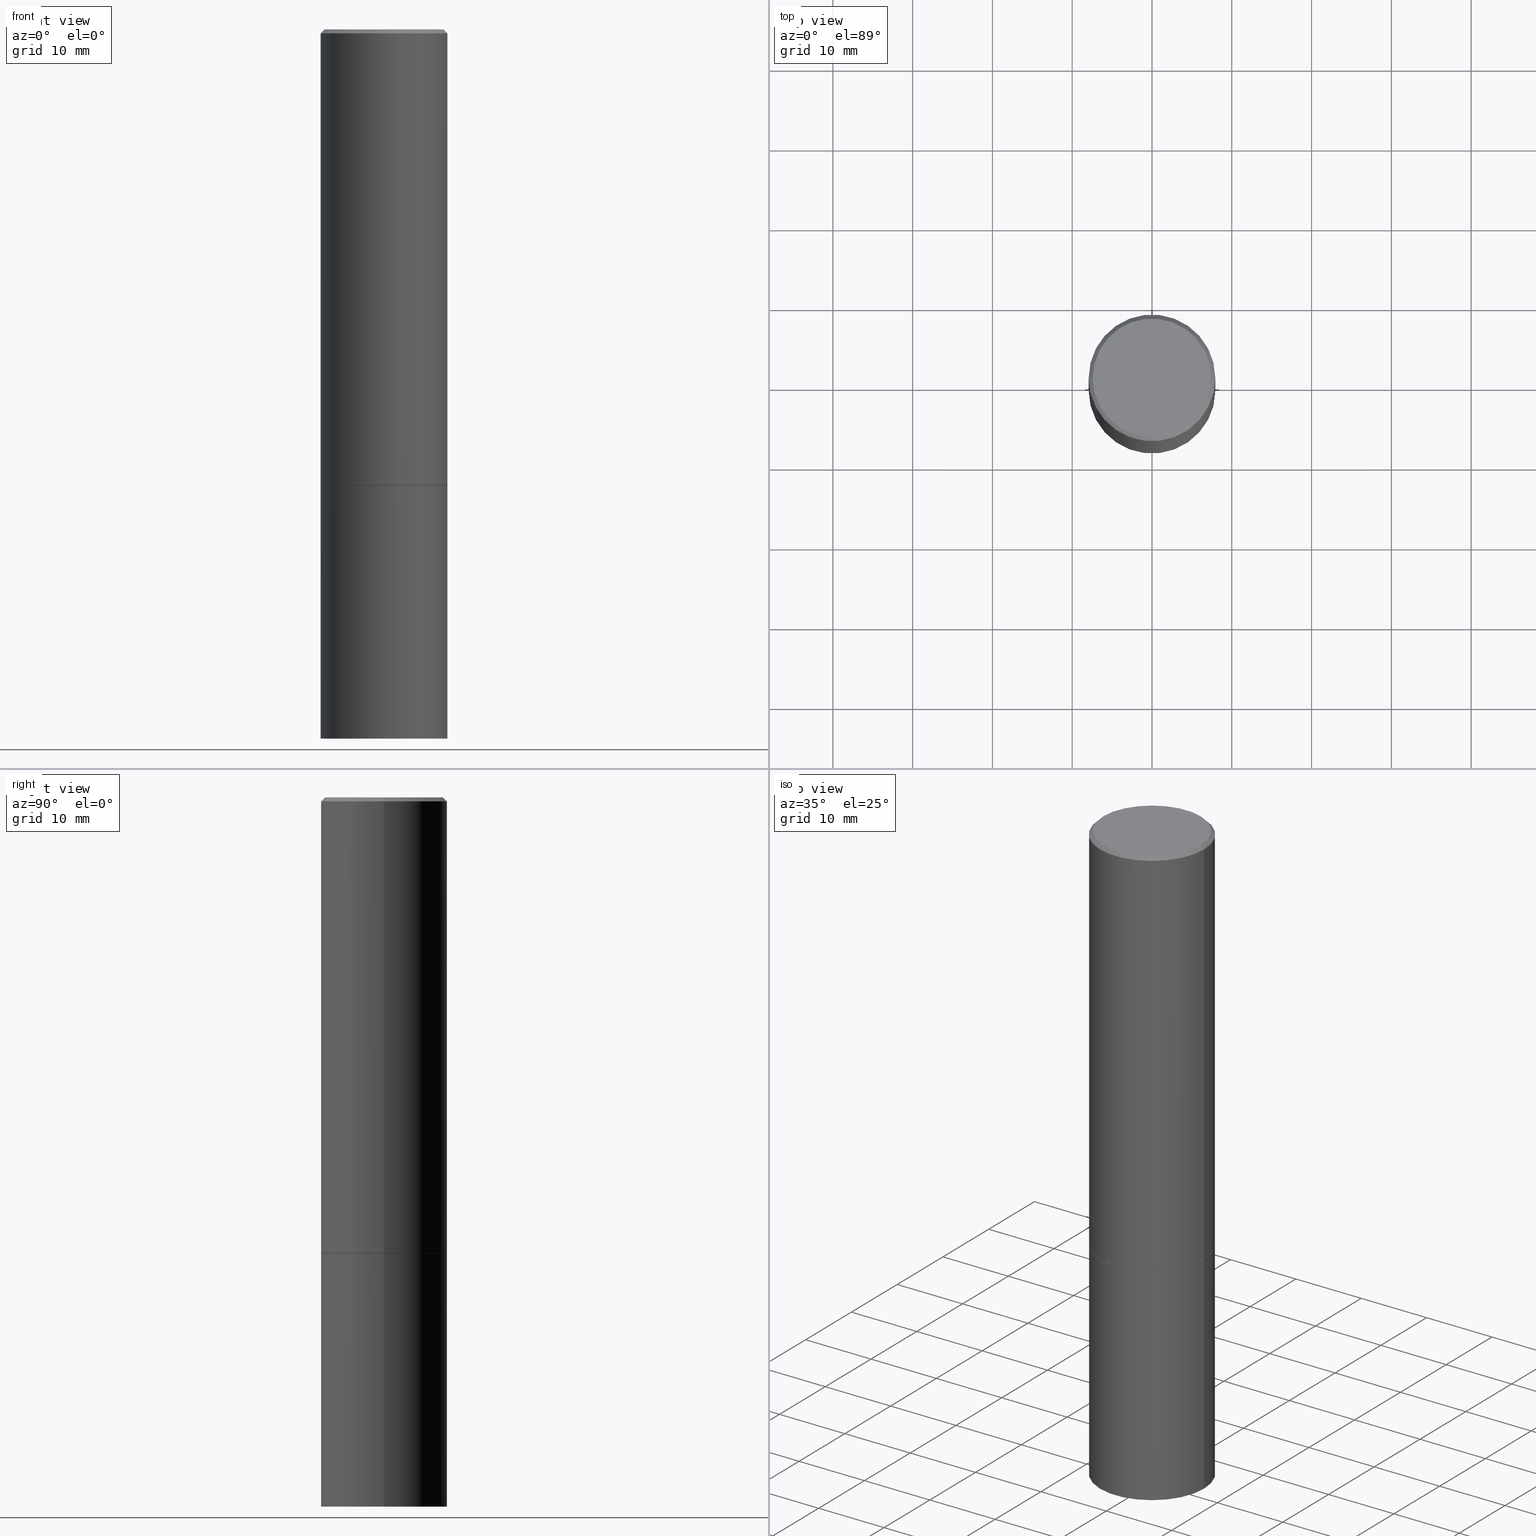
[diagram: canonical four-view strip — front | top / right | iso, engineering-drawing reading convention]
A machine part, canonical four-view strip (front | top / right | iso — engineering-drawing reading convention). The complete STEP part file that produces these views, byte-faithful:
ISO-10303-21;
HEADER;
FILE_DESCRIPTION (( 'STEP AP203' ),
    '1' );
FILE_NAME ('30381.STEP',
    '2023-03-21T20:26:38',
    ( '' ),
    ( '' ),
    'SwSTEP 2.0',
    'SolidWorks 2022',
    '' );
FILE_SCHEMA (( 'CONFIG_CONTROL_DESIGN' ));
ENDSEC;

DATA;
#1 = APPROVAL ( #134, 'UNSPECIFIED' ) ;
#2 = EDGE_CURVE ( 'NONE', #308, #19, #156, .T. ) ;
#3 = ORIENTED_EDGE ( 'NONE', *, *, #389, .F. ) ;
#4 = CARTESIAN_POINT ( 'NONE',  ( 1.047973897810563057E-27, -1.496228984211908293E-13, -42.85370130913153019 ) ) ;
#5 = CC_DESIGN_PERSON_AND_ORGANIZATION_ASSIGNMENT ( #279, #287, ( #250 ) ) ;
#6 = FACE_OUTER_BOUND ( 'NONE', #251, .T. ) ;
#7 = SECURITY_CLASSIFICATION_LEVEL ( 'unclassified' ) ;
#8 = MANIFOLD_SOLID_BREP ( 'Body-Move/Copy2[2]', #360 ) ;
#9 = CARTESIAN_POINT ( 'NONE',  ( 5.502304813916556222E-29, -7.855833012397075293E-15, -2.249999999999999556 ) ) ;
#10 = AXIS2_PLACEMENT_3D ( 'NONE', #362, #41, #334 ) ;
#11 = VECTOR ( 'NONE', #232, 39.37007874015748143 ) ;
#12 = CARTESIAN_POINT ( 'NONE',  ( 5.502304813916556222E-29, -7.855833012397076871E-15, -2.249999999999999556 ) ) ;
#13 = CARTESIAN_POINT ( 'NONE',  ( -0.3124999999999998890, 2.220446049250312292E-15, -1.537167215704657391E-29 ) ) ;
#14 = CC_DESIGN_DATE_AND_TIME_ASSIGNMENT ( #252, #370, ( #143 ) ) ;
#15 = FACE_OUTER_BOUND ( 'NONE', #327, .T. ) ;
#16 = AXIS2_PLACEMENT_3D ( 'NONE', #283, #130, #305 ) ;
#17 = APPROVAL_PERSON_ORGANIZATION ( #65, #1, #47 ) ;
#18 = CARTESIAN_POINT ( 'NONE',  ( 0.000000000000000000, 0.000000000000000000, 0.000000000000000000 ) ) ;
#19 = VERTEX_POINT ( 'NONE', #365 ) ;
#20 = CARTESIAN_POINT ( 'NONE',  ( 4.890937612370289799E-31, -6.982962677686315028E-17, -0.02000000000000006981 ) ) ;
#21 = DIRECTION ( 'NONE',  ( 2.438088387897960049E-29, -3.491481338843145188E-15, -1.000000000000000000 ) ) ;
#22 = ORIENTED_EDGE ( 'NONE', *, *, #226, .F. ) ;
#23 = DIRECTION ( 'NONE',  ( -2.445468806185136597E-29, 3.491481338843145583E-15, 1.000000000000000000 ) ) ;
#24 = PERSON ( 'UNSPECIFIED', 'UNSPECIFIED', 'UNSPECIFIED', ('UNSPECIFIED'), ('UNSPECIFIED'), ('UNSPECIFIED') ) ;
#25 = ORIENTED_EDGE ( 'NONE', *, *, #170, .F. ) ;
#26 = AXIS2_PLACEMENT_3D ( 'NONE', #296, #313, #108 ) ;
#27 =( LENGTH_UNIT ( ) NAMED_UNIT ( * ) SI_UNIT ( $, .METRE. ) );
#28 = ADVANCED_FACE ( 'NONE', ( #6 ), #214, .F. ) ;
#29 = PLANE ( 'NONE',  #178 ) ;
#30 = ORIENTED_EDGE ( 'NONE', *, *, #293, .F. ) ;
#31 = AXIS2_PLACEMENT_3D ( 'NONE', #162, #197, #259 ) ;
#32 = ORGANIZATION ( 'UNSPECIFIED', 'UNSPECIFIED', '' ) ;
#33 = EDGE_CURVE ( 'NONE', #196, #201, #96, .T. ) ;
#34 = CARTESIAN_POINT ( 'NONE',  ( 5.499859345110370619E-29, -7.852341531058232286E-15, -2.248999999999999222 ) ) ;
#35 = AXIS2_PLACEMENT_3D ( 'NONE', #9, #248, #212 ) ;
#36 = DIRECTION ( 'NONE',  ( 0.7071067811864267805, -2.468850131080992517E-15, 0.7071067811866682540 ) ) ;
#37 = LOCAL_TIME ( 16, 26, 38.00000000000000000, #384 ) ;
#38 = LINE ( 'NONE', #123, #104 ) ;
#39 = DIRECTION ( 'NONE',  ( -2.445468806185136597E-29, 3.491481338843145583E-15, 1.000000000000000000 ) ) ;
#40 = PERSON_AND_ORGANIZATION ( #24, #32 ) ;
#41 = DIRECTION ( 'NONE',  ( -2.445468806185136597E-29, 3.491481338843145583E-15, 1.000000000000000000 ) ) ;
#42 = CC_DESIGN_APPROVAL ( #1, ( #250 ) ) ;
#43 = CC_DESIGN_PERSON_AND_ORGANIZATION_ASSIGNMENT ( #40, #338, ( #250 ) ) ;
#44 = CARTESIAN_POINT ( 'NONE',  ( 0.3124999999999998890, -2.182175836776957558E-15, 1.523805242436229235E-29 ) ) ;
#45 = PERSON_AND_ORGANIZATION_ROLE ( 'classification_officer' ) ;
#46 = DIRECTION ( 'NONE',  ( 1.000000000000000000, -6.982962677686269077E-15, 0.000000000000000000 ) ) ;
#47 = APPROVAL_ROLE ( '' ) ;
#48 = DIRECTION ( 'NONE',  ( -1.000000000000000000, 6.982962677686265133E-15, 0.000000000000000000 ) ) ;
#49 = AXIS2_PLACEMENT_3D ( 'NONE', #260, #297, #300 ) ;
#50 = VECTOR ( 'NONE', #302, 39.37007874015748143 ) ;
#51 = CARTESIAN_POINT ( 'NONE',  ( 4.890937612370289799E-31, -6.982962677686315028E-17, -0.02000000000000006981 ) ) ;
#52 = FACE_OUTER_BOUND ( 'NONE', #355, .T. ) ;
#53 = ORIENTED_EDGE ( 'NONE', *, *, #170, .T. ) ;
#54 = LINE ( 'NONE', #199, #203 ) ;
#55 = DIRECTION ( 'NONE',  ( -1.000000000000000000, 6.982962677686265922E-15, -4.876176775795935793E-29 ) ) ;
#56 = ORIENTED_EDGE ( 'NONE', *, *, #328, .T. ) ;
#57 = EDGE_CURVE ( 'NONE', #126, #388, #228, .T. ) ;
#58 = CARTESIAN_POINT ( 'NONE',  ( -0.2924999999999997602, 2.077431396611662611E-15, 4.268512490086005323E-18 ) ) ;
#59 = EDGE_LOOP ( 'NONE', ( #301, #53 ) ) ;
#60 =( CONVERSION_BASED_UNIT ( 'INCH', #329 ) LENGTH_UNIT ( ) NAMED_UNIT ( #116 ) );
#61 = ORIENTED_EDGE ( 'NONE', *, *, #310, .T. ) ;
#62 = DIRECTION ( 'NONE',  ( -2.445468806185136597E-29, 3.491481338843145583E-15, 1.000000000000000000 ) ) ;
#63 = CC_DESIGN_SECURITY_CLASSIFICATION ( #143, ( #250 ) ) ;
#64 = CARTESIAN_POINT ( 'NONE',  ( -1.043851414335219820E-46, 1.490343170380447200E-32, 4.268512490100411279E-18 ) ) ;
#65 = PERSON_AND_ORGANIZATION ( #24, #32 ) ;
#66 = CARTESIAN_POINT ( 'NONE',  ( 5.502304813916556222E-29, -7.855833012397076871E-15, -2.249999999999999556 ) ) ;
#67 = DIRECTION ( 'NONE',  ( -2.445468806185136877E-29, 3.491481338843145188E-15, 1.000000000000000000 ) ) ;
#68 = AXIS2_PLACEMENT_3D ( 'NONE', #81, #325, #171 ) ;
#69 = EDGE_CURVE ( 'NONE', #386, #176, #318, .T. ) ;
#70 = LINE ( 'NONE', #256, #97 ) ;
#71 = DATE_AND_TIME ( #343, #189 ) ;
#72 = CARTESIAN_POINT ( 'NONE',  ( 5.502304813916556222E-29, -7.855833012397076871E-15, -2.249999999999999556 ) ) ;
#73 = CC_DESIGN_DATE_AND_TIME_ASSIGNMENT ( #255, #99, ( #141 ) ) ;
#74 = LINE ( 'NONE', #13, #304 ) ;
#75 = CARTESIAN_POINT ( 'NONE',  ( 0.3125000000000000000, -2.182175836776958347E-15, 1.523805242436230075E-29 ) ) ;
#76 = AXIS2_PLACEMENT_3D ( 'NONE', #51, #165, #48 ) ;
#77 = ORIENTED_EDGE ( 'NONE', *, *, #211, .T. ) ;
#78 = CARTESIAN_POINT ( 'NONE',  ( -3.060330002220305055E-18, -1.216300319114572191E-14, -3.483622568974051870 ) ) ;
#79 = DIRECTION ( 'NONE',  ( -0.7071067811864267805, 7.493145998869918709E-15, 0.7071067811866682540 ) ) ;
#80 = EDGE_LOOP ( 'NONE', ( #322, #204, #77, #348 ) ) ;
#81 = CARTESIAN_POINT ( 'NONE',  ( 8.559140821647976968E-29, -1.222018468595100934E-14, -3.500000000000000000 ) ) ;
#82 = APPROVAL_DATE_TIME ( #354, #314 ) ;
#83 = ORIENTED_EDGE ( 'NONE', *, *, #209, .F. ) ;
#84 = DIRECTION ( 'NONE',  ( 1.000000000000000000, -6.982962677686269077E-15, 0.000000000000000000 ) ) ;
#85 = ORIENTED_EDGE ( 'NONE', *, *, #69, .F. ) ;
#86 = DIRECTION ( 'NONE',  ( -2.445468806185136597E-29, 3.491481338843145583E-15, 1.000000000000000000 ) ) ;
#87 = ORIENTED_EDGE ( 'NONE', *, *, #2, .T. ) ;
#88 = ADVANCED_FACE ( 'NONE', ( #280 ), #381, .T. ) ;
#89 = EDGE_CURVE ( 'NONE', #386, #201, #38, .T. ) ;
#90 = CIRCLE ( 'NONE', #281, 0.3114999999999999991 ) ;
#91 = APPLICATION_CONTEXT ( 'configuration controlled 3d designs of mechanical parts and assemblies' ) ;
#92 = FACE_OUTER_BOUND ( 'NONE', #137, .T. ) ;
#93 = COORDINATED_UNIVERSAL_TIME_OFFSET ( 5, 0, .BEHIND. ) ;
#94 = ADVANCED_FACE ( 'NONE', ( #92 ), #341, .T. ) ;
#95 = DIRECTION ( 'NONE',  ( 2.445468806185136597E-29, -3.491481338843145583E-15, -1.000000000000000000 ) ) ;
#96 = CIRCLE ( 'NONE', #10, 0.3124999999999998335 ) ;
#97 = VECTOR ( 'NONE', #67, 39.37007874015748143 ) ;
#98 = ORIENTED_EDGE ( 'NONE', *, *, #293, .T. ) ;
#99 = DATE_TIME_ROLE ( 'creation_date' ) ;
#100 = DIRECTION ( 'NONE',  ( 1.000000000000000000, -6.982962677686265922E-15, 0.000000000000000000 ) ) ;
#101 = LINE ( 'NONE', #276, #237 ) ;
#102 = ADVANCED_FACE ( 'NONE', ( #306 ), #158, .T. ) ;
#103 = CARTESIAN_POINT ( 'NONE',  ( 1.047973897810563057E-27, -1.496228984211908293E-13, -42.85370130913153019 ) ) ;
#104 = VECTOR ( 'NONE', #369, 39.37007874015748143 ) ;
#105 = APPROVAL_DATE_TIME ( #373, #1 ) ;
#106 = LOCAL_TIME ( 16, 26, 38.00000000000000000, #93 ) ;
#107 = DIRECTION ( 'NONE',  ( -2.445468806185136597E-29, 3.491481338843145583E-15, 1.000000000000000000 ) ) ;
#108 = DIRECTION ( 'NONE',  ( 1.000000000000000000, -6.982962677686266711E-15, 4.876176775795936353E-29 ) ) ;
#109 = FACE_OUTER_BOUND ( 'NONE', #185, .T. ) ;
#110 = ORIENTED_EDGE ( 'NONE', *, *, #2, .F. ) ;
#111 = LINE ( 'NONE', #132, #11 ) ;
#112 = CALENDAR_DATE ( 2023, 21, 3 ) ;
#113 = VERTEX_POINT ( 'NONE', #253 ) ;
#114 = UNCERTAINTY_MEASURE_WITH_UNIT (LENGTH_MEASURE( 1.000000000000000082E-05 ), #60, 'distance_accuracy_value', 'NONE');
#115 = EDGE_LOOP ( 'NONE', ( #22, #385, #240, #174 ) ) ;
#116 = DIMENSIONAL_EXPONENTS ( 1.000000000000000000, 0.000000000000000000, 0.000000000000000000, 0.000000000000000000, 0.000000000000000000, 0.000000000000000000, 0.000000000000000000 ) ;
#117 = ORIENTED_EDGE ( 'NONE', *, *, #33, .T. ) ;
#118 = AXIS2_PLACEMENT_3D ( 'NONE', #4, #95, #125 ) ;
#119 = AXIS2_PLACEMENT_3D ( 'NONE', #378, #227, #350 ) ;
#120 = PERSON_AND_ORGANIZATION_ROLE ( 'creator' ) ;
#121 = EDGE_CURVE ( 'NONE', #377, #388, #101, .T. ) ;
#122 = CC_DESIGN_APPROVAL ( #191, ( #143 ) ) ;
#123 = CARTESIAN_POINT ( 'NONE',  ( -0.3124999999999998335, 2.112346210000093866E-15, -0.02000000000000006981 ) ) ;
#124 = PRODUCT_DEFINITION_SHAPE ( 'NONE', 'NONE',  #141 ) ;
#125 = DIRECTION ( 'NONE',  ( -1.000000000000000000, 6.982962677686266711E-15, 0.000000000000000000 ) ) ;
#126 = VERTEX_POINT ( 'NONE', #153 ) ;
#127 = CIRCLE ( 'NONE', #68, 0.3125000000000000000 ) ;
#128 = DIRECTION ( 'NONE',  ( 1.000000000000000000, -6.982962677686265922E-15, 0.000000000000000000 ) ) ;
#129 = COORDINATED_UNIVERSAL_TIME_OFFSET ( 5, 0, .BEHIND. ) ;
#130 = DIRECTION ( 'NONE',  ( -2.445468806185136597E-29, 3.491481338843145583E-15, 1.000000000000000000 ) ) ;
#131 = SHAPE_DEFINITION_REPRESENTATION ( #124, #241 ) ;
#132 = CARTESIAN_POINT ( 'NONE',  ( 3.060330002390687070E-18, -1.216300319114572191E-14, -3.483622568974051870 ) ) ;
#133 = LINE ( 'NONE', #44, #243 ) ;
#134 = APPROVAL_STATUS ( 'not_yet_approved' ) ;
#135 = DIRECTION ( 'NONE',  ( -2.445468806185136597E-29, 3.491481338843145583E-15, 1.000000000000000000 ) ) ;
#136 = DIRECTION ( 'NONE',  ( 1.000000000000000000, -6.982962677686265922E-15, 0.000000000000000000 ) ) ;
#137 = EDGE_LOOP ( 'NONE', ( #144, #380, #332, #295 ) ) ;
#138 = DIRECTION ( 'NONE',  ( 2.445468806185136597E-29, -3.491481338843145583E-15, -1.000000000000000000 ) ) ;
#139 = APPLICATION_PROTOCOL_DEFINITION ( 'international standard', 'config_control_design', 1994, #91 ) ;
#140 = CARTESIAN_POINT ( 'NONE',  ( -0.3124999999999998335, 2.112346210000093866E-15, -0.02000000000000006981 ) ) ;
#141 = PRODUCT_DEFINITION ( 'UNKNOWN', '', #250, #177 ) ;
#142 = MECHANICAL_CONTEXT ( 'NONE', #315, 'mechanical' ) ;
#143 = SECURITY_CLASSIFICATION ( '', '', #7 ) ;
#144 = ORIENTED_EDGE ( 'NONE', *, *, #353, .T. ) ;
#145 = ADVANCED_FACE ( 'NONE', ( #277 ), #242, .F. ) ;
#146 = CARTESIAN_POINT ( 'NONE',  ( 0.3125000000000000000, -1.003451736783519063E-14, -2.248999999999999222 ) ) ;
#147 = VERTEX_POINT ( 'NONE', #246 ) ;
#148 = CARTESIAN_POINT ( 'NONE',  ( 0.3114999999999999991, -1.003102588649634920E-14, -2.249999999999999556 ) ) ;
#149 = EDGE_LOOP ( 'NONE', ( #83, #98, #270 ) ) ;
#150 = AXIS2_PLACEMENT_3D ( 'NONE', #64, #215, #337 ) ;
#151 = DIRECTION ( 'NONE',  ( -2.445468806185136597E-29, 3.491481338843145583E-15, 1.000000000000000000 ) ) ;
#152 = AXIS2_PLACEMENT_3D ( 'NONE', #175, #347, #84 ) ;
#153 = CARTESIAN_POINT ( 'NONE',  ( -0.3125000000000000000, -1.740639529667232739E-15, -2.248999999999999222 ) ) ;
#154 = CARTESIAN_POINT ( 'NONE',  ( 0.000000000000000000, 0.000000000000000000, 0.000000000000000000 ) ) ;
#155 = EDGE_LOOP ( 'NONE', ( #30, #169, #231 ) ) ;
#156 = CIRCLE ( 'NONE', #35, 0.3125000000000000000 ) ;
#157 = AXIS2_PLACEMENT_3D ( 'NONE', #345, #383, #168 ) ;
#158 = CYLINDRICAL_SURFACE ( 'NONE', #16, 0.3124999999999998890 ) ;
#159 = DIRECTION ( 'NONE',  ( 2.445468806185136597E-29, -3.491481338843145583E-15, -1.000000000000000000 ) ) ;
#160 = APPROVAL_DATE_TIME ( #71, #191 ) ;
#161 = ADVANCED_FACE ( 'NONE', ( #184 ), #363, .T. ) ;
#162 = CARTESIAN_POINT ( 'NONE',  ( -1.043851414335219820E-46, 1.490343170380447200E-32, 4.268512490100411279E-18 ) ) ;
#163 = DIRECTION ( 'NONE',  ( 1.000000000000000000, -6.982962677686265922E-15, 0.000000000000000000 ) ) ;
#164 = CONICAL_SURFACE ( 'NONE', #183, 751.2258538476739886, 1.518436449235074148 ) ;
#165 = DIRECTION ( 'NONE',  ( 2.445468806185136597E-29, -3.491481338843145583E-15, -1.000000000000000000 ) ) ;
#166 = PERSON_AND_ORGANIZATION ( #24, #32 ) ;
#167 = ORIENTED_EDGE ( 'NONE', *, *, #310, .F. ) ;
#168 = DIRECTION ( 'NONE',  ( 1.000000000000000000, -6.982962677686265133E-15, 0.000000000000000000 ) ) ;
#169 = ORIENTED_EDGE ( 'NONE', *, *, #209, .T. ) ;
#170 = EDGE_CURVE ( 'NONE', #176, #386, #219, .T. ) ;
#171 = DIRECTION ( 'NONE',  ( 1.000000000000000000, -6.982962677686269077E-15, 0.000000000000000000 ) ) ;
#172 = CLOSED_SHELL ( 'NONE', ( #161, #303, #145, #206, #285 ) ) ;
#173 =( NAMED_UNIT ( * ) SI_UNIT ( $, .STERADIAN. ) SOLID_ANGLE_UNIT ( ) );
#174 = ORIENTED_EDGE ( 'NONE', *, *, #292, .F. ) ;
#175 = CARTESIAN_POINT ( 'NONE',  ( 8.559140821647976968E-29, -1.222018468595100934E-14, -3.500000000000000000 ) ) ;
#176 = VERTEX_POINT ( 'NONE', #222 ) ;
#177 = DESIGN_CONTEXT ( 'detailed design', #91, 'design' ) ;
#178 = AXIS2_PLACEMENT_3D ( 'NONE', #230, #21, #55 ) ;
#179 = DIRECTION ( 'NONE',  ( 1.000000000000000000, -6.982962677686265922E-15, 4.876176775795935793E-29 ) ) ;
#180 = PRODUCT ( '30381', '30381', '', ( #142 ) ) ;
#181 = ORIENTED_EDGE ( 'NONE', *, *, #292, .T. ) ;
#182 = AXIS2_PLACEMENT_3D ( 'NONE', #34, #62, #307 ) ;
#183 = AXIS2_PLACEMENT_3D ( 'NONE', #103, #159, #220 ) ;
#184 = FACE_OUTER_BOUND ( 'NONE', #186, .T. ) ;
#185 = EDGE_LOOP ( 'NONE', ( #87, #181 ) ) ;
#186 = EDGE_LOOP ( 'NONE', ( #56, #225, #110, #3 ) ) ;
#187 = CALENDAR_DATE ( 2023, 21, 3 ) ;
#188 = AXIS2_PLACEMENT_3D ( 'NONE', #371, #151, #100 ) ;
#189 = LOCAL_TIME ( 16, 26, 38.00000000000000000, #367 ) ;
#190 = CARTESIAN_POINT ( 'NONE',  ( 8.516953307929821515E-29, -1.216606352114802660E-14, -3.483622568974051870 ) ) ;
#191 = APPROVAL ( #249, 'UNSPECIFIED' ) ;
#192 = DIRECTION ( 'NONE',  ( -1.000000000000000000, 6.982962677686265133E-15, 0.000000000000000000 ) ) ;
#193 = CALENDAR_DATE ( 2023, 21, 3 ) ;
#194 = DIRECTION ( 'NONE',  ( -2.445468806185136597E-29, 3.491481338843145583E-15, 1.000000000000000000 ) ) ;
#195 = DIRECTION ( 'NONE',  ( -2.445468806185136877E-29, 3.491481338843145188E-15, 1.000000000000000000 ) ) ;
#196 = VERTEX_POINT ( 'NONE', #224 ) ;
#197 = DIRECTION ( 'NONE',  ( -2.445468806185136597E-29, 3.491481338843145583E-15, 1.000000000000000000 ) ) ;
#198 = ORIENTED_EDGE ( 'NONE', *, *, #353, .F. ) ;
#199 = CARTESIAN_POINT ( 'NONE',  ( 0.3124999999999998335, -2.213735251080465334E-15, -0.02000000000000006981 ) ) ;
#200 = PERSON_AND_ORGANIZATION ( #24, #32 ) ;
#201 = VERTEX_POINT ( 'NONE', #140 ) ;
#202 = AXIS2_PLACEMENT_3D ( 'NONE', #66, #336, #179 ) ;
#203 = VECTOR ( 'NONE', #205, 39.37007874015748143 ) ;
#204 = ORIENTED_EDGE ( 'NONE', *, *, #57, .T. ) ;
#205 = DIRECTION ( 'NONE',  ( 0.7071067811865466846, -7.319954787623252890E-15, -0.7071067811865483499 ) ) ;
#206 = ADVANCED_FACE ( 'NONE', ( #376 ), #286, .T. ) ;
#207 =( GEOMETRIC_REPRESENTATION_CONTEXT ( 3 ) GLOBAL_UNCERTAINTY_ASSIGNED_CONTEXT ( ( #114 ) ) GLOBAL_UNIT_ASSIGNED_CONTEXT ( ( #60, #272, #173 ) ) REPRESENTATION_CONTEXT ( 'NONE', 'WORKASPACE' ) );
#208 = ORIENTED_EDGE ( 'NONE', *, *, #89, .F. ) ;
#209 = EDGE_CURVE ( 'NONE', #298, #147, #288, .T. ) ;
#210 = ORIENTED_EDGE ( 'NONE', *, *, #89, .T. ) ;
#211 = EDGE_CURVE ( 'NONE', #388, #196, #133, .T. ) ;
#212 = DIRECTION ( 'NONE',  ( 1.000000000000000000, -6.982962677686265133E-15, 0.000000000000000000 ) ) ;
#213 = AXIS2_PLACEMENT_3D ( 'NONE', #375, #262, #46 ) ;
#214 = PLANE ( 'NONE',  #202 ) ;
#215 = DIRECTION ( 'NONE',  ( -2.445468806185136597E-29, 3.491481338843145583E-15, 1.000000000000000000 ) ) ;
#216 = COORDINATED_UNIVERSAL_TIME_OFFSET ( 5, 0, .BEHIND. ) ;
#217 = ORIENTED_EDGE ( 'NONE', *, *, #344, .F. ) ;
#218 = CC_DESIGN_PERSON_AND_ORGANIZATION_ASSIGNMENT ( #340, #45, ( #143 ) ) ;
#219 = CIRCLE ( 'NONE', #31, 0.2924999999999997602 ) ;
#220 = DIRECTION ( 'NONE',  ( -1.000000000000000000, 6.982962677686266711E-15, 0.000000000000000000 ) ) ;
#221 = PERSON_AND_ORGANIZATION ( #24, #32 ) ;
#222 = CARTESIAN_POINT ( 'NONE',  ( 0.2924999999999997602, -2.110215457714318353E-15, 4.268512490114932791E-18 ) ) ;
#223 = EDGE_CURVE ( 'NONE', #126, #201, #74, .T. ) ;
#224 = CARTESIAN_POINT ( 'NONE',  ( 0.3124999999999998335, -2.213735251080465334E-15, -0.02000000000000006981 ) ) ;
#225 = ORIENTED_EDGE ( 'NONE', *, *, #226, .T. ) ;
#226 = EDGE_CURVE ( 'NONE', #147, #19, #70, .T. ) ;
#227 = DIRECTION ( 'NONE',  ( 2.438088387897960049E-29, -3.491481338843145188E-15, -1.000000000000000000 ) ) ;
#228 = CIRCLE ( 'NONE', #182, 0.3125000000000000000 ) ;
#229 = CIRCLE ( 'NONE', #157, 0.3125000000000000000 ) ;
#230 = CARTESIAN_POINT ( 'NONE',  ( 2.042516583223231356E-15, 0.2924999999999997602, -1.019124035366569212E-15 ) ) ;
#231 = ORIENTED_EDGE ( 'NONE', *, *, #328, .F. ) ;
#232 = DIRECTION ( 'NONE',  ( 0.9986295347545742773, -7.033825938271997912E-15, -0.05233595624293643084 ) ) ;
#233 = FACE_OUTER_BOUND ( 'NONE', #59, .T. ) ;
#234 = VERTEX_POINT ( 'NONE', #264 ) ;
#235 = ADVANCED_FACE ( 'NONE', ( #320 ), #319, .T. ) ;
#236 = ORIENTED_EDGE ( 'NONE', *, *, #33, .F. ) ;
#237 = VECTOR ( 'NONE', #36, 39.37007874015748143 ) ;
#238 = PERSON_AND_ORGANIZATION_ROLE ( 'design_owner' ) ;
#239 = APPROVAL_PERSON_ORGANIZATION ( #221, #191, #257 ) ;
#240 = ORIENTED_EDGE ( 'NONE', *, *, #389, .T. ) ;
#241 = ADVANCED_BREP_SHAPE_REPRESENTATION ( '30381', ( #271, #8, #49 ), #207 ) ;
#242 = CONICAL_SURFACE ( 'NONE', #118, 751.2258538476739886, 1.518436449235074148 ) ;
#243 = VECTOR ( 'NONE', #323, 39.37007874015748143 ) ;
#244 = EDGE_LOOP ( 'NONE', ( #273, #85, #210, #324 ) ) ;
#245 = LINE ( 'NONE', #356, #349 ) ;
#246 = CARTESIAN_POINT ( 'NONE',  ( -0.3124999999999997224, -1.003800884917405415E-14, -3.500000000000000000 ) ) ;
#247 = ADVANCED_FACE ( 'NONE', ( #15 ), #294, .T. ) ;
#248 = DIRECTION ( 'NONE',  ( -2.445468806185136597E-29, 3.491481338843145583E-15, 1.000000000000000000 ) ) ;
#249 = APPROVAL_STATUS ( 'not_yet_approved' ) ;
#250 = PRODUCT_DEFINITION_FORMATION_WITH_SPECIFIED_SOURCE ( 'ANY', '', #180, .NOT_KNOWN. ) ;
#251 = EDGE_LOOP ( 'NONE', ( #198, #167 ) ) ;
#252 = DATE_AND_TIME ( #187, #361 ) ;
#253 = CARTESIAN_POINT ( 'NONE',  ( -0.3114999999999999991, -5.637193936156142396E-15, -2.249999999999999556 ) ) ;
#254 = DIRECTION ( 'NONE',  ( 1.000000000000000000, -6.982962677686266711E-15, 4.876176775795936353E-29 ) ) ;
#255 = DATE_AND_TIME ( #193, #106 ) ;
#256 = CARTESIAN_POINT ( 'NONE',  ( -0.3125000000000000000, 2.220446049250313081E-15, -1.537167215704658232E-29 ) ) ;
#257 = APPROVAL_ROLE ( '' ) ;
#258 = PRODUCT_RELATED_PRODUCT_CATEGORY ( 'detail', '', ( #180 ) ) ;
#259 = DIRECTION ( 'NONE',  ( 1.000000000000000000, -6.982962677686266711E-15, 4.876067333457693400E-29 ) ) ;
#260 = CARTESIAN_POINT ( 'NONE',  ( 0.000000000000000000, 0.000000000000000000, 0.000000000000000000 ) ) ;
#261 = ADVANCED_FACE ( 'NONE', ( #52 ), #382, .T. ) ;
#262 = DIRECTION ( 'NONE',  ( -2.445468806185136597E-29, 3.491481338843145583E-15, 1.000000000000000000 ) ) ;
#263 = PERSON_AND_ORGANIZATION ( #24, #32 ) ;
#264 = CARTESIAN_POINT ( 'NONE',  ( 0.3124999999999997224, -1.436409031025461138E-14, -3.500000000000000000 ) ) ;
#265 = AXIS2_PLACEMENT_3D ( 'NONE', #12, #39, #128 ) ;
#266 = AXIS2_PLACEMENT_3D ( 'NONE', #20, #138, #192 ) ;
#267 = APPROVAL_ROLE ( '' ) ;
#268 = ORIENTED_EDGE ( 'NONE', *, *, #211, .F. ) ;
#269 = CARTESIAN_POINT ( 'NONE',  ( 5.502304813916556222E-29, -7.855833012397076871E-15, -2.249999999999999556 ) ) ;
#270 = ORIENTED_EDGE ( 'NONE', *, *, #387, .F. ) ;
#271 = MANIFOLD_SOLID_BREP ( 'Body-Move/Copy2[1]', #172 ) ;
#272 =( NAMED_UNIT ( * ) PLANE_ANGLE_UNIT ( ) SI_UNIT ( $, .RADIAN. ) );
#273 = ORIENTED_EDGE ( 'NONE', *, *, #330, .F. ) ;
#274 = AXIS2_PLACEMENT_3D ( 'NONE', #269, #86, #136 ) ;
#275 = EDGE_CURVE ( 'NONE', #388, #126, #290, .T. ) ;
#276 = CARTESIAN_POINT ( 'NONE',  ( 0.3114999999999999991, -1.003102588649634920E-14, -2.249999999999999556 ) ) ;
#277 = FACE_OUTER_BOUND ( 'NONE', #155, .T. ) ;
#278 = ORIENTED_EDGE ( 'NONE', *, *, #223, .T. ) ;
#279 = PERSON_AND_ORGANIZATION ( #24, #32 ) ;
#280 = FACE_OUTER_BOUND ( 'NONE', #351, .T. ) ;
#281 = AXIS2_PLACEMENT_3D ( 'NONE', #72, #194, #163 ) ;
#282 = CC_DESIGN_PERSON_AND_ORGANIZATION_ASSIGNMENT ( #166, #238, ( #180 ) ) ;
#283 = CARTESIAN_POINT ( 'NONE',  ( 0.000000000000000000, 0.000000000000000000, 0.000000000000000000 ) ) ;
#284 = CALENDAR_DATE ( 2023, 21, 3 ) ;
#285 = ADVANCED_FACE ( 'NONE', ( #109 ), #372, .F. ) ;
#286 = CYLINDRICAL_SURFACE ( 'NONE', #26, 0.3125000000000000000 ) ;
#287 = PERSON_AND_ORGANIZATION_ROLE ( 'design_supplier' ) ;
#288 = LINE ( 'NONE', #78, #289 ) ;
#289 = VECTOR ( 'NONE', #346, 39.37007874015748143 ) ;
#290 = CIRCLE ( 'NONE', #213, 0.3125000000000000000 ) ;
#291 = CARTESIAN_POINT ( 'NONE',  ( 4.890937612370289799E-31, -6.982962677686315028E-17, -0.02000000000000006981 ) ) ;
#292 = EDGE_CURVE ( 'NONE', #19, #308, #229, .T. ) ;
#293 = EDGE_CURVE ( 'NONE', #298, #234, #111, .T. ) ;
#294 = CYLINDRICAL_SURFACE ( 'NONE', #335, 0.3124999999999998890 ) ;
#295 = ORIENTED_EDGE ( 'NONE', *, *, #121, .F. ) ;
#296 = CARTESIAN_POINT ( 'NONE',  ( 0.000000000000000000, 0.000000000000000000, 0.000000000000000000 ) ) ;
#297 = DIRECTION ( 'NONE',  ( 0.000000000000000000, 0.000000000000000000, 1.000000000000000000 ) ) ;
#298 = VERTEX_POINT ( 'NONE', #190 ) ;
#299 = APPROVAL_PERSON_ORGANIZATION ( #263, #314, #267 ) ;
#300 = DIRECTION ( 'NONE',  ( 1.000000000000000000, 0.000000000000000000, 0.000000000000000000 ) ) ;
#301 = ORIENTED_EDGE ( 'NONE', *, *, #69, .T. ) ;
#302 = DIRECTION ( 'NONE',  ( -2.445468806185136877E-29, 3.491481338843145188E-15, 1.000000000000000000 ) ) ;
#303 = ADVANCED_FACE ( 'NONE', ( #312 ), #164, .F. ) ;
#304 = VECTOR ( 'NONE', #195, 39.37007874015748143 ) ;
#305 = DIRECTION ( 'NONE',  ( 1.000000000000000000, -6.982962677686266711E-15, 4.876176775795935232E-29 ) ) ;
#306 = FACE_OUTER_BOUND ( 'NONE', #80, .T. ) ;
#307 = DIRECTION ( 'NONE',  ( 1.000000000000000000, -6.982962677686269077E-15, 0.000000000000000000 ) ) ;
#308 = VERTEX_POINT ( 'NONE', #342 ) ;
#309 = ORIENTED_EDGE ( 'NONE', *, *, #330, .T. ) ;
#310 = EDGE_CURVE ( 'NONE', #113, #377, #90, .T. ) ;
#311 = AXIS2_PLACEMENT_3D ( 'NONE', #291, #135, #352 ) ;
#312 = FACE_OUTER_BOUND ( 'NONE', #149, .T. ) ;
#313 = DIRECTION ( 'NONE',  ( -2.445468806185136597E-29, 3.491481338843145583E-15, 1.000000000000000000 ) ) ;
#314 = APPROVAL ( #379, 'UNSPECIFIED' ) ;
#315 = APPLICATION_CONTEXT ( 'configuration controlled 3d designs of mechanical parts and assemblies' ) ;
#316 = DIRECTION ( 'NONE',  ( 1.000000000000000000, -6.982962677686266711E-15, 4.876176775795935232E-29 ) ) ;
#317 = EDGE_CURVE ( 'NONE', #201, #196, #368, .T. ) ;
#318 = CIRCLE ( 'NONE', #150, 0.2924999999999997602 ) ;
#319 = CONICAL_SURFACE ( 'NONE', #76, 0.3124999999999998335, 0.7853981633974471688 ) ;
#320 = FACE_OUTER_BOUND ( 'NONE', #244, .T. ) ;
#321 = APPLICATION_PROTOCOL_DEFINITION ( 'international standard', 'config_control_design', 1994, #315 ) ;
#322 = ORIENTED_EDGE ( 'NONE', *, *, #223, .F. ) ;
#323 = DIRECTION ( 'NONE',  ( -2.445468806185136877E-29, 3.491481338843145188E-15, 1.000000000000000000 ) ) ;
#324 = ORIENTED_EDGE ( 'NONE', *, *, #317, .T. ) ;
#325 = DIRECTION ( 'NONE',  ( -2.445468806185136597E-29, 3.491481338843145583E-15, 1.000000000000000000 ) ) ;
#326 = LINE ( 'NONE', #75, #50 ) ;
#327 = EDGE_LOOP ( 'NONE', ( #339, #278, #236, #268 ) ) ;
#328 = EDGE_CURVE ( 'NONE', #234, #147, #127, .T. ) ;
#329 = LENGTH_MEASURE_WITH_UNIT ( LENGTH_MEASURE( 0.02539999999999999897 ), #27 );
#330 = EDGE_CURVE ( 'NONE', #176, #196, #54, .T. ) ;
#331 = LOCAL_TIME ( 16, 26, 38.00000000000000000, #216 ) ;
#332 = ORIENTED_EDGE ( 'NONE', *, *, #275, .F. ) ;
#333 = ORIENTED_EDGE ( 'NONE', *, *, #57, .F. ) ;
#334 = DIRECTION ( 'NONE',  ( 1.000000000000000000, -6.982962677686265133E-15, 0.000000000000000000 ) ) ;
#335 = AXIS2_PLACEMENT_3D ( 'NONE', #18, #107, #316 ) ;
#336 = DIRECTION ( 'NONE',  ( -2.438088387897960049E-29, 3.491481338843145188E-15, 1.000000000000000000 ) ) ;
#337 = DIRECTION ( 'NONE',  ( 1.000000000000000000, -6.982962677686266711E-15, 4.876067333457693400E-29 ) ) ;
#338 = PERSON_AND_ORGANIZATION_ROLE ( 'creator' ) ;
#339 = ORIENTED_EDGE ( 'NONE', *, *, #275, .T. ) ;
#340 = PERSON_AND_ORGANIZATION ( #24, #32 ) ;
#341 = CONICAL_SURFACE ( 'NONE', #188, 0.3114999999999999991, 0.7853981633972775267 ) ;
#342 = CARTESIAN_POINT ( 'NONE',  ( 0.3125000000000000000, -1.003800884917403364E-14, -2.249999999999999556 ) ) ;
#343 = CALENDAR_DATE ( 2023, 21, 3 ) ;
#344 = EDGE_CURVE ( 'NONE', #113, #126, #245, .T. ) ;
#345 = CARTESIAN_POINT ( 'NONE',  ( 5.502304813916556222E-29, -7.855833012397075293E-15, -2.249999999999999556 ) ) ;
#346 = DIRECTION ( 'NONE',  ( -0.9986295347545742773, 6.790662755453668466E-15, -0.05233595624293643084 ) ) ;
#347 = DIRECTION ( 'NONE',  ( -2.445468806185136597E-29, 3.491481338843145583E-15, 1.000000000000000000 ) ) ;
#348 = ORIENTED_EDGE ( 'NONE', *, *, #317, .F. ) ;
#349 = VECTOR ( 'NONE', #79, 39.37007874015748143 ) ;
#350 = DIRECTION ( 'NONE',  ( -1.000000000000000000, 6.982962677686265922E-15, -4.876176775795935793E-29 ) ) ;
#351 = EDGE_LOOP ( 'NONE', ( #217, #61, #359, #333 ) ) ;
#352 = DIRECTION ( 'NONE',  ( 1.000000000000000000, -6.982962677686265133E-15, 0.000000000000000000 ) ) ;
#353 = EDGE_CURVE ( 'NONE', #377, #113, #390, .T. ) ;
#354 = DATE_AND_TIME ( #112, #37 ) ;
#355 = EDGE_LOOP ( 'NONE', ( #25, #309, #117, #208 ) ) ;
#356 = CARTESIAN_POINT ( 'NONE',  ( -0.3114999999999999991, -5.642492390504364798E-15, -2.249999999999999556 ) ) ;
#357 = CC_DESIGN_PERSON_AND_ORGANIZATION_ASSIGNMENT ( #200, #120, ( #141 ) ) ;
#358 = CIRCLE ( 'NONE', #152, 0.3125000000000000000 ) ;
#359 = ORIENTED_EDGE ( 'NONE', *, *, #121, .T. ) ;
#360 = CLOSED_SHELL ( 'NONE', ( #94, #247, #261, #235, #102, #88, #28, #364 ) ) ;
#361 = LOCAL_TIME ( 16, 26, 38.00000000000000000, #129 ) ;
#362 = CARTESIAN_POINT ( 'NONE',  ( 4.890937612370289799E-31, -6.982962677686315028E-17, -0.02000000000000006981 ) ) ;
#363 = CYLINDRICAL_SURFACE ( 'NONE', #366, 0.3125000000000000000 ) ;
#364 = ADVANCED_FACE ( 'NONE', ( #233 ), #29, .F. ) ;
#365 = CARTESIAN_POINT ( 'NONE',  ( -0.3125000000000000000, -7.817562799923728448E-15, -2.249999999999999556 ) ) ;
#366 = AXIS2_PLACEMENT_3D ( 'NONE', #154, #23, #254 ) ;
#367 = COORDINATED_UNIVERSAL_TIME_OFFSET ( 5, 0, .BEHIND. ) ;
#368 = CIRCLE ( 'NONE', #311, 0.3124999999999998335 ) ;
#369 = DIRECTION ( 'NONE',  ( -0.7071067811865466846, 2.468850131082247989E-15, -0.7071067811865483499 ) ) ;
#370 = DATE_TIME_ROLE ( 'classification_date' ) ;
#371 = CARTESIAN_POINT ( 'NONE',  ( 5.502304813916556222E-29, -7.855833012397076871E-15, -2.249999999999999556 ) ) ;
#372 = PLANE ( 'NONE',  #119 ) ;
#373 = DATE_AND_TIME ( #284, #331 ) ;
#374 = CC_DESIGN_APPROVAL ( #314, ( #141 ) ) ;
#375 = CARTESIAN_POINT ( 'NONE',  ( 5.499859345110370619E-29, -7.852341531058232286E-15, -2.248999999999999222 ) ) ;
#376 = FACE_OUTER_BOUND ( 'NONE', #115, .T. ) ;
#377 = VERTEX_POINT ( 'NONE', #148 ) ;
#378 = CARTESIAN_POINT ( 'NONE',  ( 2.182175836777013173E-15, 0.3124999999999921729, -2.250000000000000444 ) ) ;
#379 = APPROVAL_STATUS ( 'not_yet_approved' ) ;
#380 = ORIENTED_EDGE ( 'NONE', *, *, #344, .T. ) ;
#381 = CONICAL_SURFACE ( 'NONE', #265, 0.3114999999999999991, 0.7853981633972775267 ) ;
#382 = CONICAL_SURFACE ( 'NONE', #266, 0.3124999999999998335, 0.7853981633974471688 ) ;
#383 = DIRECTION ( 'NONE',  ( -2.445468806185136597E-29, 3.491481338843145583E-15, 1.000000000000000000 ) ) ;
#384 = COORDINATED_UNIVERSAL_TIME_OFFSET ( 5, 0, .BEHIND. ) ;
#385 = ORIENTED_EDGE ( 'NONE', *, *, #387, .T. ) ;
#386 = VERTEX_POINT ( 'NONE', #58 ) ;
#387 = EDGE_CURVE ( 'NONE', #147, #234, #358, .T. ) ;
#388 = VERTEX_POINT ( 'NONE', #146 ) ;
#389 = EDGE_CURVE ( 'NONE', #234, #308, #326, .T. ) ;
#390 = CIRCLE ( 'NONE', #274, 0.3114999999999999991 ) ;
ENDSEC;
END-ISO-10303-21;
